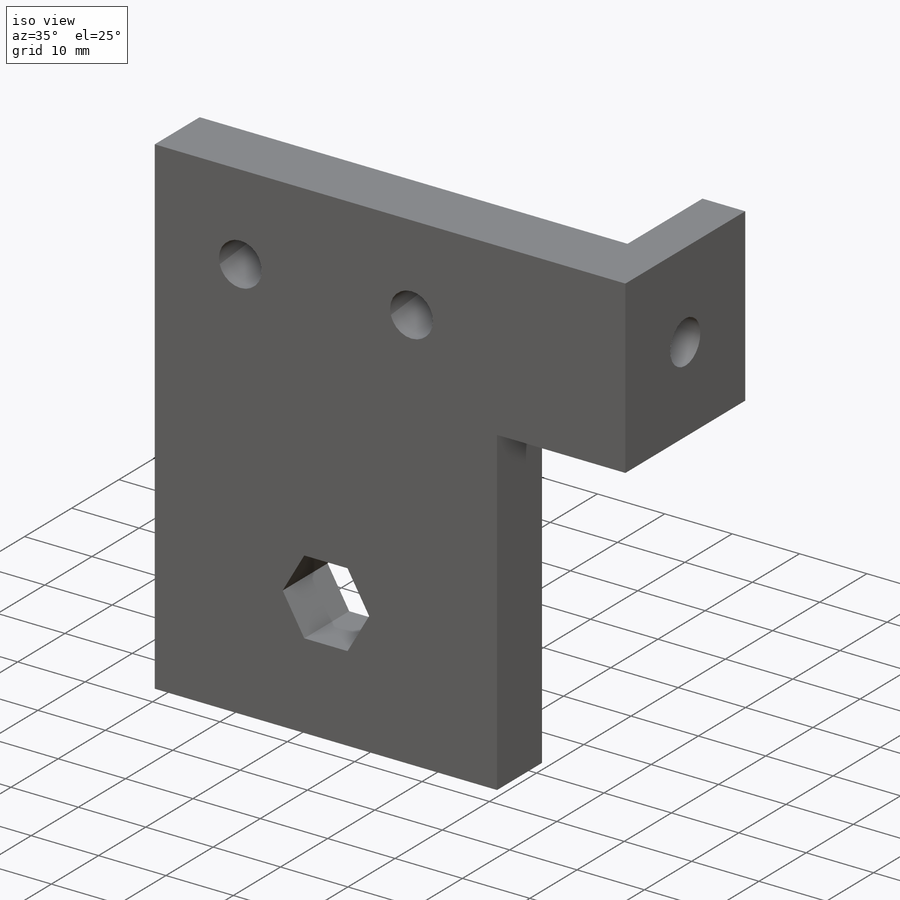
[diagram: iso view]
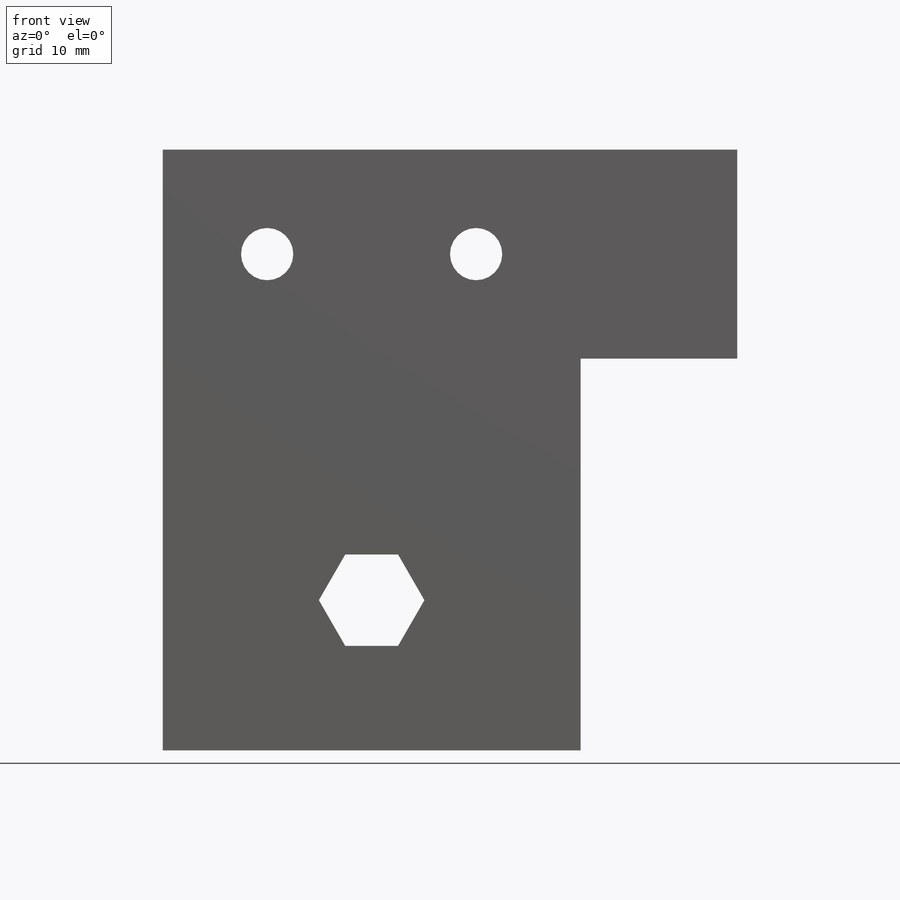
[diagram: front view]
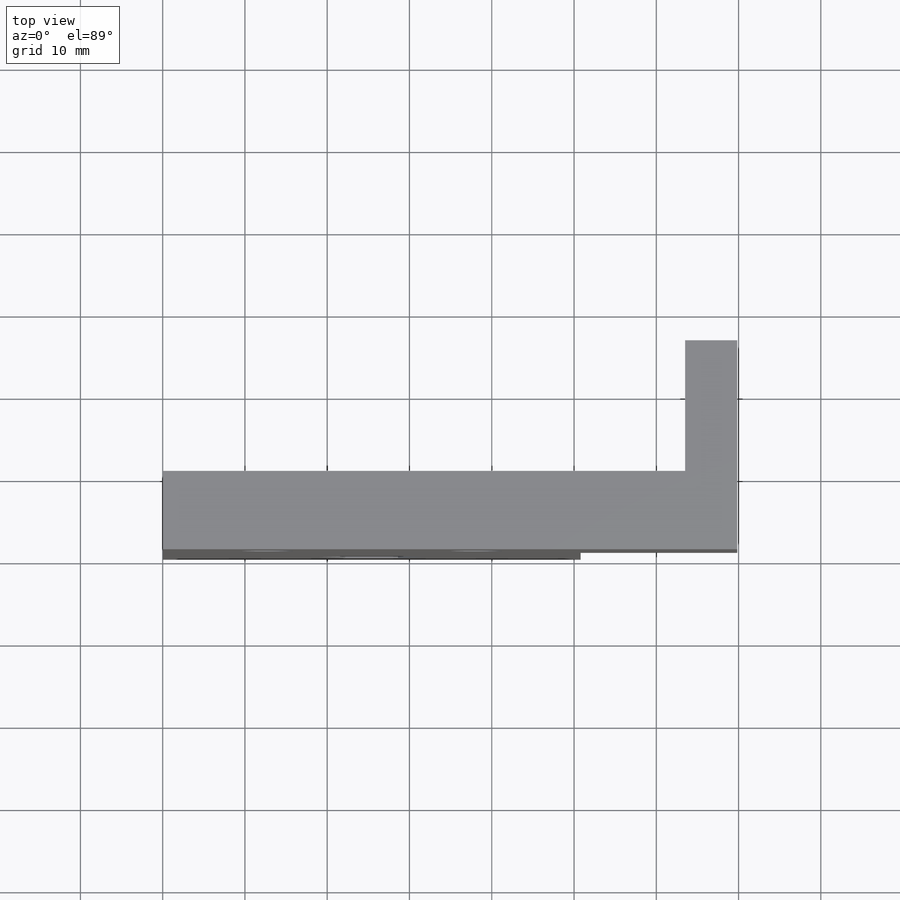
[diagram: top view]
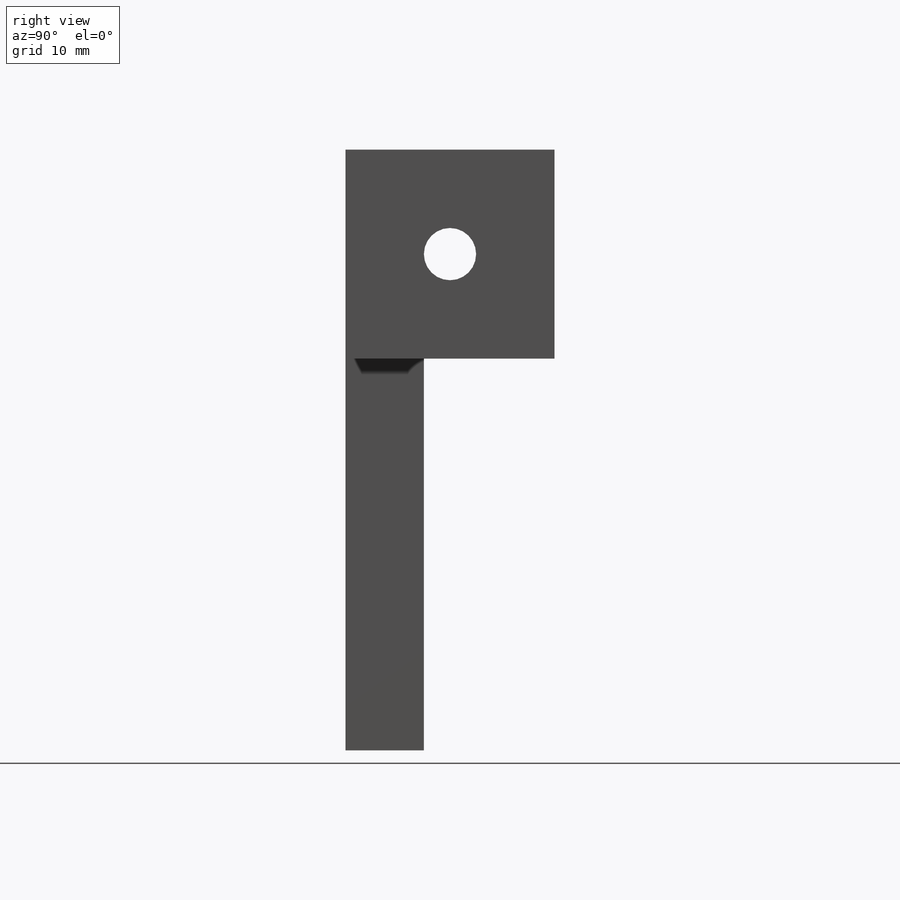
[diagram: right view]
SOLIDWORKS PART (.sldprt)
format: sldprt  version: not decoded by parser v0  size: 186,880 bytes
history: native  units: mm
features: sketch x3, extrude x2, material x1, cut_extrude x1, fillet x1 (+16 scaffold rows collapsed)
feature tree (24):
  scaffold x16  (default folders/planes/origin — collapsed)
  material  "ABS"
  sketch  "Sketch2"  dims[D3=6.35mm D9=~5.953125mm D1=50.8mm D2=73.025mm D4=12.7mm D5=12.7mm D6=~18.25625mm D7=12.7mm D8=25.4mm]
  extrude  "Extrude1"  Depth=9.525mm
  sketch  "Sketch3"  dims[D3=6.35mm D1=25.4mm D2=25.4mm D4=12.7mm D5=12.7mm]
  extrude  "Extrude2"  Depth=6.35mm
  sketch  "Sketch4"  dims[D1=10.414mm]
  cut_extrude  "Extrude3"  Depth=12.7mm
  fillet  "Fillet1"  Radius=2mm
decode coverage: 7 of 7 modeling features carry decoded parameters
note: ~ marks probable driven/reference dimensions
note: suppression state not decoded; provenance and decode notes live in map.json
